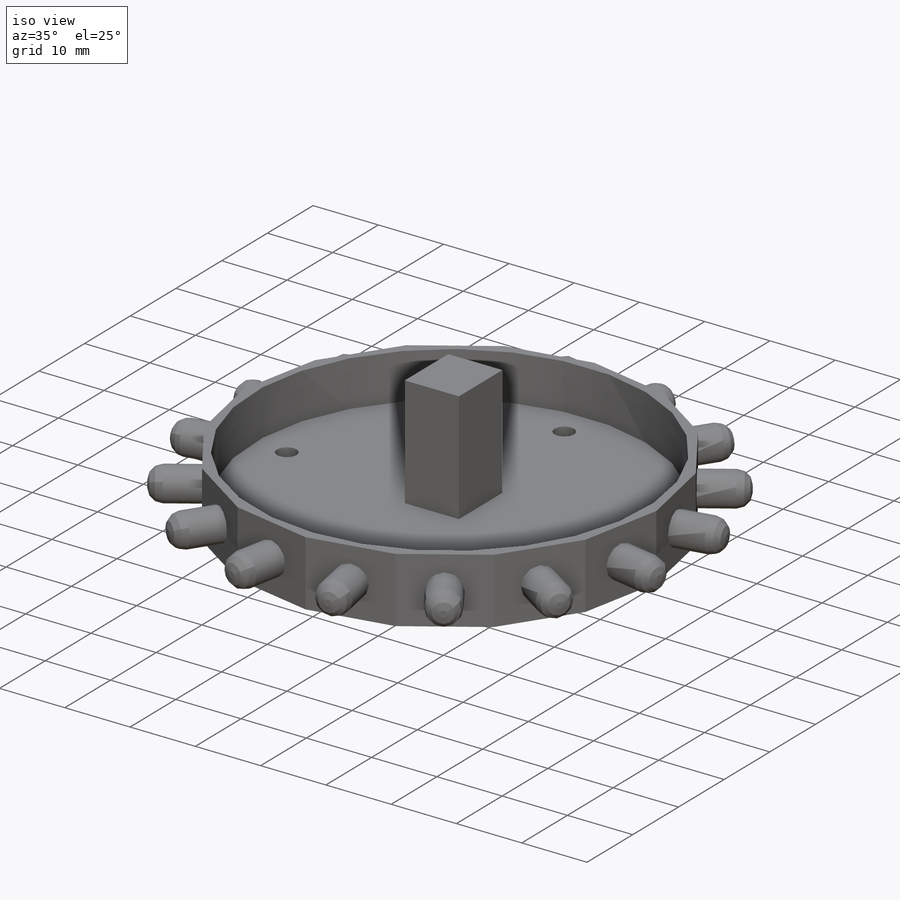
[diagram: iso view]
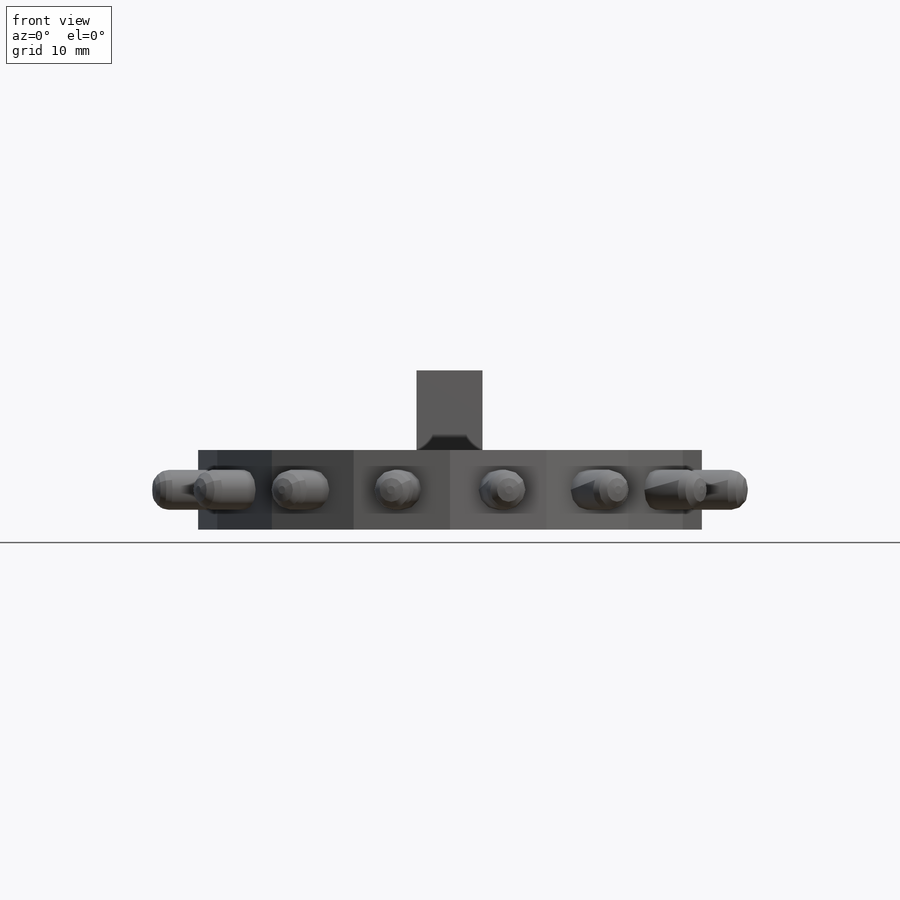
[diagram: front view]
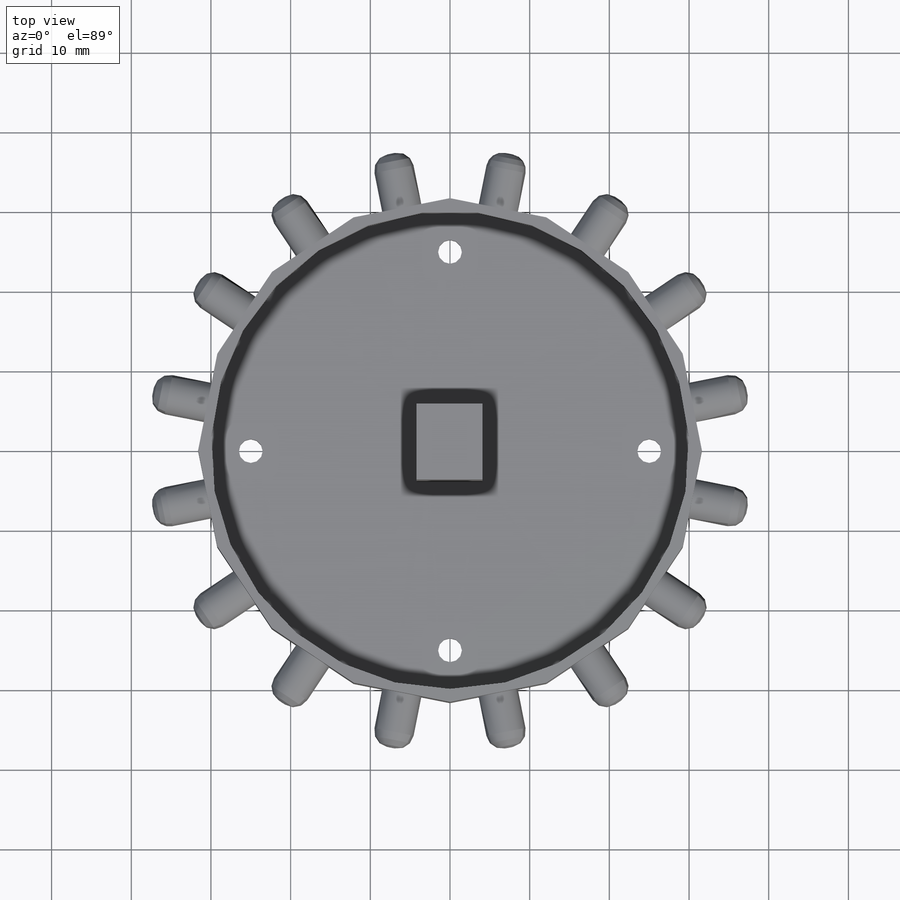
[diagram: top view]
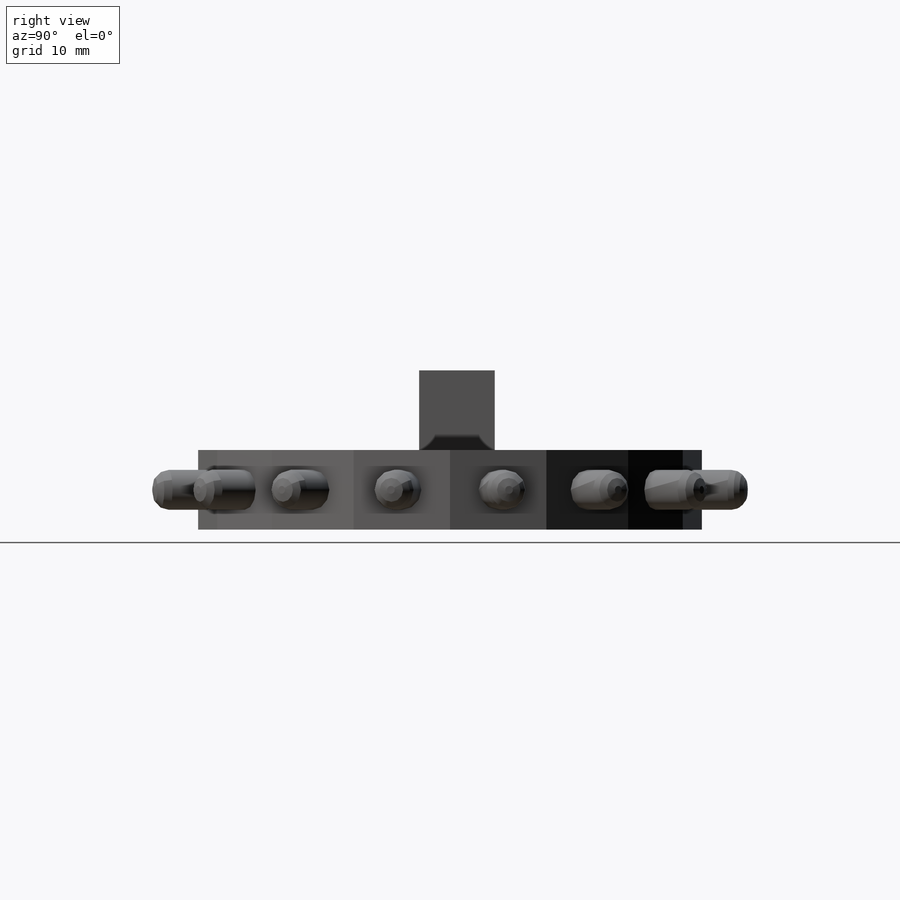
[diagram: right view]
SOLIDWORKS PART (.sldprt)
format: sldprt  version: not decoded by parser v0  size: 257,024 bytes
history: native  units: mm
features: sketch x4, plane x3, extrude x3, material x1, cut_extrude x1, fillet x1, pattern_circular x1 (+9 scaffold rows collapsed)
feature tree (23):
  scaffold x9  (default folders/planes/origin — collapsed)
  material  "Material <not specified>"
  plane  "Face"
  plane  "Dessus"
  plane  "Droite"
  sketch  "Esquisse1"  dims[c1.D1=3.0mm c1.D2=62.0mm c1.D3=4.0mm c1.D4=4.0mm c2.D3=25.0mm c2.D4=25.0mm]
  extrude  "Extrusion1"  Depth=10mm
  sketch  "Esquisse3"  dims[D1=60.0mm]
  cut_extrude  "Extrusion3"  Depth=7mm
  sketch  "Esquisse4"  dims[D1=5.0mm]
  extrude  "Extrusion4"  Depth=7mm
  fillet  "Congé1"  Radius=2mm
  pattern_circular  "Répétition circulaire1"  Count=16 Angle=22.5deg
  sketch  "Esquisse5"
  extrude  "Extrusion5"  Depth=17mm
decode coverage: 9 of 10 modeling features carry decoded parameters
note: suppression state not decoded; provenance and decode notes live in map.json
